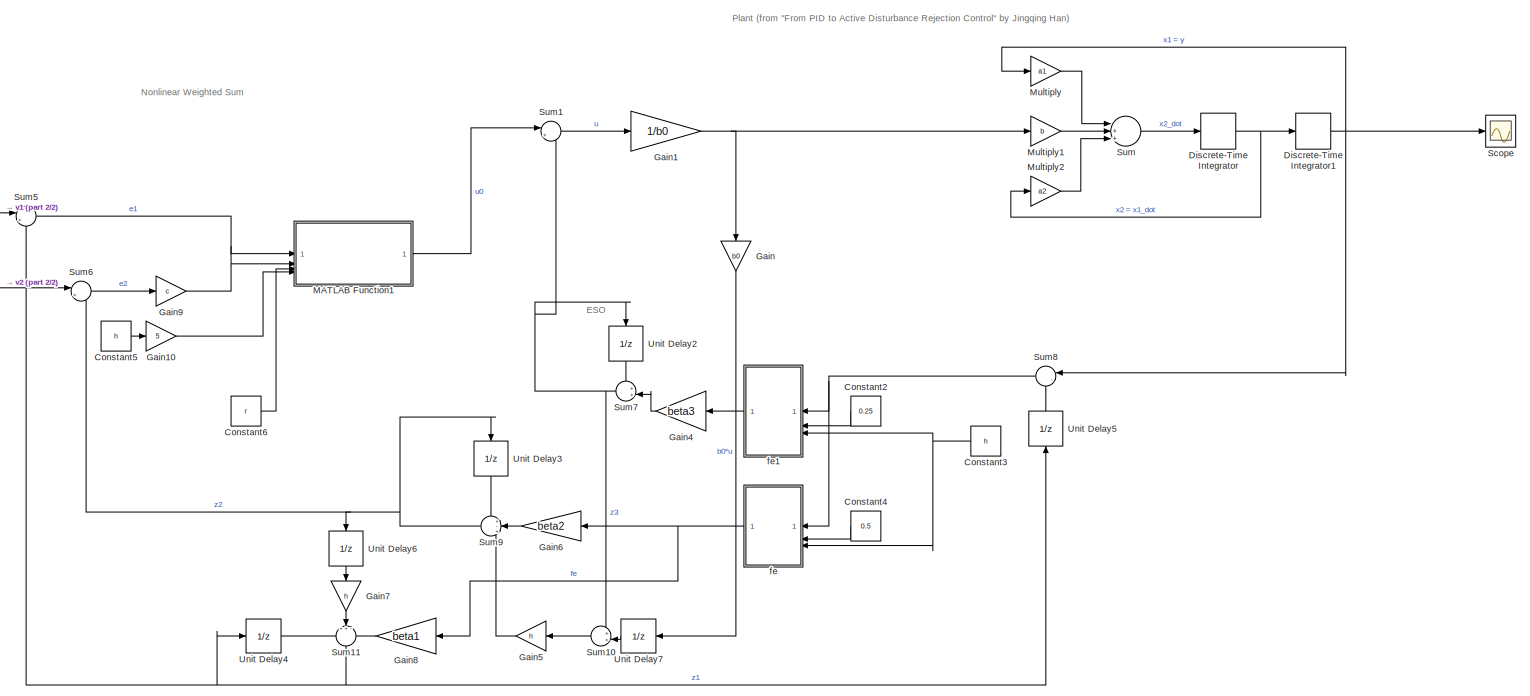
[diagram: root canvas - part 1/2, center side, full height]
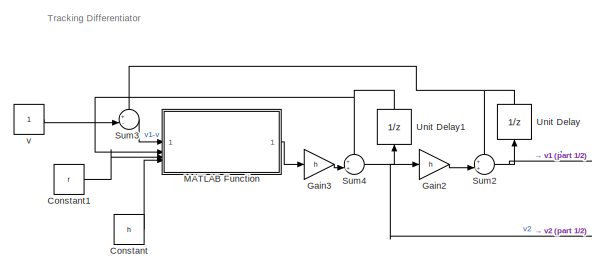
[diagram: root canvas - part 2/2, top left region]
MODEL slx_e5fe6f34e759
KIND model
CONFIG AbsTol = auto
CONFIG EnableMultiTasking = off
CONFIG FixedStep = h
CONFIG MaxStep = auto
CONFIG MinStep = auto
CONFIG RelTol = 1e-5
CONFIG SampleTimeConstraint = Unconstrained
CONFIG SolverName = FixedStepAuto
CONFIG StartTime = 0.0
CONFIG StopTime = 10.0
BLOCK [Constant] Constant
  Value = h
BLOCK [Constant] Constant1
  Value = r
BLOCK [Constant] Constant2
  NameLocation = top
  Value = 0.25
BLOCK [Constant] Constant3
  NameLocation = top
  Value = h
BLOCK [Constant] Constant4
  NameLocation = top
  Value = 0.5
BLOCK [Constant] Constant5
  Value = h
BLOCK [Constant] Constant6
  Value = r
BLOCK [DiscreteIntegrator] Discrete-Time Integrator
  ICPrevOutput = DiscIntNeverNeededParam
  ICPrevScaledInput = DiscIntNeverNeededParam
  InitialConditionSetting = Auto
  SampleTime = -1
BLOCK [DiscreteIntegrator] Discrete-Time Integrator1
  ICPrevOutput = DiscIntNeverNeededParam
  ICPrevScaledInput = DiscIntNeverNeededParam
  InitialConditionSetting = Auto
  SampleTime = -1
BLOCK [Gain] Gain
  Gain = b0
  NameLocation = left
BLOCK [Gain] Gain1
  Gain = 1/b0
BLOCK [Gain] Gain10
  Gain = 5
BLOCK [Gain] Gain2
  Gain = h
BLOCK [Gain] Gain3
  Gain = h
BLOCK [Gain] Gain4
  Gain = beta3
  NameLocation = top
BLOCK [Gain] Gain5
  Gain = h
  NameLocation = top
BLOCK [Gain] Gain6
  Gain = beta2
  NameLocation = top
BLOCK [Gain] Gain7
  Gain = h
  NameLocation = left
BLOCK [Gain] Gain8
  Gain = beta1
  NameLocation = top
BLOCK [Gain] Gain9
  Gain = c
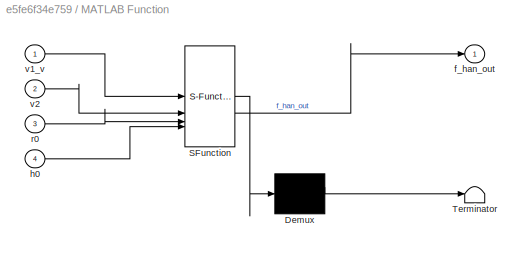
BLOCK [SubSystem] MATLAB Function
  ErrorFcn = Stateflow.Translate.translate
  PermitHierarchicalResolution = ExplicitOnly
  SFBlockType = MATLAB Function
  TreatAsAtomicUnit = on
BLOCK [Demux] MATLAB Function/ Demux 
  Outputs = 1
BLOCK [S-Function] MATLAB Function/ SFunction 
  EnableBusSupport = on
  FunctionName = sf_sfun
  PortCounts = [4 2]
  SFcnIsStateOwnerBlock = off
  SFunctionDeploymentMode = off
  Tag = Stateflow S-Function 2
BLOCK [Terminator] MATLAB Function/ Terminator 
BLOCK [Outport] MATLAB Function/f_han_out
BLOCK [Inport] MATLAB Function/h0
  Port = 4
BLOCK [Inport] MATLAB Function/r0
  Port = 3
BLOCK [Inport] MATLAB Function/v1_v
BLOCK [Inport] MATLAB Function/v2
  Port = 2
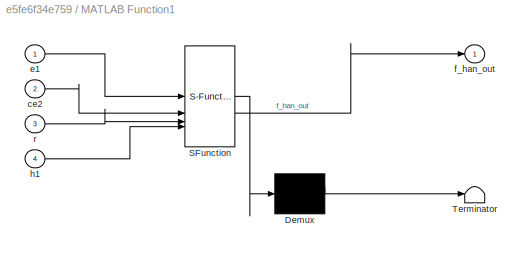
BLOCK [SubSystem] MATLAB Function1
  ErrorFcn = Stateflow.Translate.translate
  PermitHierarchicalResolution = ExplicitOnly
  SFBlockType = MATLAB Function
  TreatAsAtomicUnit = on
BLOCK [Demux] MATLAB Function1/ Demux 
  Outputs = 1
BLOCK [S-Function] MATLAB Function1/ SFunction 
  EnableBusSupport = on
  FunctionName = sf_sfun
  PortCounts = [4 2]
  SFcnIsStateOwnerBlock = off
  SFunctionDeploymentMode = off
  Tag = Stateflow S-Function 4
BLOCK [Terminator] MATLAB Function1/ Terminator 
BLOCK [Inport] MATLAB Function1/ce2
  Port = 2
BLOCK [Inport] MATLAB Function1/e1
BLOCK [Outport] MATLAB Function1/f_han_out
BLOCK [Inport] MATLAB Function1/h1
  Port = 4
BLOCK [Inport] MATLAB Function1/r
  Port = 3
BLOCK [Gain] Multiply
  Gain = a1
BLOCK [Gain] Multiply1
  Gain = b
BLOCK [Gain] Multiply2
  Gain = a2
BLOCK [Scope] Scope
  Floating = off
  NumInputPorts = 1
  ScopeSpecificationString = Simulink.scopes.TimeScopeBlockCfg('CurrentConfiguration', extmgr.ConfigurationSet(extmgr.Configuration('Core','General UI',true),extmgr.Configuration('Core','Source UI',true),extmgr.Configuration('Sources','WiredSimulink',true),extmgr.Configuration('Visuals','Time Domain',true,'SerializedDisplays',{struct('MinYLimReal','-1.00000','MaxYLimReal','1.00000','YLabelReal','','MinYLimMag','0.00000','MaxY...<+1415ch>
BLOCK [Sum] Sum
  Inputs = |+++|
BLOCK [Sum] Sum1
  Inputs = |+-
BLOCK [Sum] Sum10
  Inputs = ++|
  NameLocation = top
BLOCK [Sum] Sum11
  Inputs = ++-
  NameLocation = left
BLOCK [Sum] Sum2
  Inputs = ++|
BLOCK [Sum] Sum3
  Inputs = +-|
BLOCK [Sum] Sum4
  Inputs = ++|
BLOCK [Sum] Sum5
  Inputs = |+-
BLOCK [Sum] Sum6
  Inputs = |+-
BLOCK [Sum] Sum7
  Inputs = ++|
  NameLocation = top
BLOCK [Sum] Sum8
  Inputs = |-+
  NameLocation = top
BLOCK [Sum] Sum9
  Inputs = +-+
  NameLocation = top
BLOCK [UnitDelay] Unit Delay
  HasFrameUpgradeWarning = on
  NameLocation = right
  SampleTime = -1
BLOCK [UnitDelay] Unit Delay1
  HasFrameUpgradeWarning = on
  NameLocation = right
  SampleTime = -1
BLOCK [UnitDelay] Unit Delay2
  HasFrameUpgradeWarning = on
  NameLocation = left
  SampleTime = -1
BLOCK [UnitDelay] Unit Delay3
  HasFrameUpgradeWarning = on
  NameLocation = left
  SampleTime = -1
BLOCK [UnitDelay] Unit Delay4
  HasFrameUpgradeWarning = on
  SampleTime = -1
BLOCK [UnitDelay] Unit Delay5
  HasFrameUpgradeWarning = on
  NameLocation = right
  SampleTime = -1
BLOCK [UnitDelay] Unit Delay6
  HasFrameUpgradeWarning = on
  NameLocation = left
  SampleTime = -1
BLOCK [UnitDelay] Unit Delay7
  HasFrameUpgradeWarning = on
  NameLocation = top
  SampleTime = -1
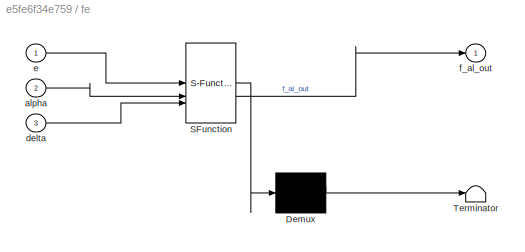
BLOCK [SubSystem] fe
  ErrorFcn = Stateflow.Translate.translate
  NameLocation = top
  PermitHierarchicalResolution = ExplicitOnly
  SFBlockType = MATLAB Function
  TreatAsAtomicUnit = on
BLOCK [Demux] fe/ Demux 
  Outputs = 1
BLOCK [S-Function] fe/ SFunction 
  EnableBusSupport = on
  FunctionName = sf_sfun
  PortCounts = [3 2]
  SFcnIsStateOwnerBlock = off
  SFunctionDeploymentMode = off
  Tag = Stateflow S-Function 3
BLOCK [Terminator] fe/ Terminator 
BLOCK [Inport] fe/alpha
  Port = 2
BLOCK [Inport] fe/delta
  Port = 3
BLOCK [Inport] fe/e
BLOCK [Outport] fe/f_al_out
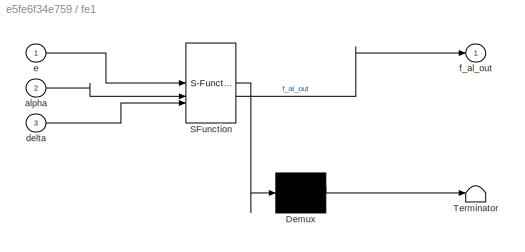
BLOCK [SubSystem] fe1
  ErrorFcn = Stateflow.Translate.translate
  NameLocation = top
  PermitHierarchicalResolution = ExplicitOnly
  SFBlockType = MATLAB Function
  TreatAsAtomicUnit = on
BLOCK [Demux] fe1/ Demux 
  Outputs = 1
BLOCK [S-Function] fe1/ SFunction 
  EnableBusSupport = on
  FunctionName = sf_sfun
  PortCounts = [3 2]
  SFcnIsStateOwnerBlock = off
  SFunctionDeploymentMode = off
  Tag = Stateflow S-Function 1
BLOCK [Terminator] fe1/ Terminator 
BLOCK [Inport] fe1/alpha
  Port = 2
BLOCK [Inport] fe1/delta
  Port = 3
BLOCK [Inport] fe1/e
BLOCK [Outport] fe1/f_al_out
BLOCK [Constant] v
ANNOTATION (root): ESO
ANNOTATION (root): Nonlinear Weighted Sum
ANNOTATION (root): Plant (from "From PID to Active Disturbance Rejection Control" by Jingqing Han)
ANNOTATION (root): Tracking Differentiator
LINE Constant1:1 -> MATLAB Function:3
LINE Constant2:1 -> fe1:2
NET Constant3:1 -> fe1:3, fe:3
LINE Constant4:1 -> fe:2
LINE Constant5:1 -> Gain10:1
LINE Constant6:1 -> MATLAB Function1:3
LINE Constant:1 -> MATLAB Function:4
NET Discrete-Time Integrator1:1 -> Multiply:1, Scope:1, Sum8:1
NET Discrete-Time Integrator:1 -> Discrete-Time Integrator1:1, Multiply2:1
LINE Gain10:1 -> MATLAB Function1:4
NET Gain1:1 -> Gain:1, Multiply1:1
LINE Gain2:1 -> Sum2:2
LINE Gain3:1 -> Sum4:2
LINE Gain4:1 -> Sum7:2
LINE Gain5:1 -> Sum9:3
LINE Gain6:1 -> Sum9:2
LINE Gain7:1 -> Sum11:2
LINE Gain8:1 -> Sum11:3
LINE Gain9:1 -> MATLAB Function1:2
LINE Gain:1 -> Unit Delay7:1
LINE MATLAB Function1:1 -> Sum1:1
LINE MATLAB Function:1 -> Gain3:1
LINE Multiply1:1 -> Sum:2
LINE Multiply2:1 -> Sum:3
LINE Multiply:1 -> Sum:1
LINE Sum10:1 -> Gain5:1
NET Sum11:1 -> Sum5:2, Unit Delay4:1, Unit Delay5:1
LINE Sum1:1 -> Gain1:1
NET Sum2:1 -> Sum5:1, Unit Delay:1
LINE Sum3:1 -> MATLAB Function:1
NET Sum4:1 -> Gain2:1, Sum6:1, Unit Delay1:1
LINE Sum5:1 -> MATLAB Function1:1
LINE Sum6:1 -> Gain9:1
NET Sum7:1 -> Sum10:1, Sum1:2, Unit Delay2:1
NET Sum8:1 -> fe1:1, fe:1
NET Sum9:1 -> Sum6:2, Unit Delay3:1, Unit Delay6:1
LINE Sum:1 -> Discrete-Time Integrator:1
NET Unit Delay1:1 -> MATLAB Function:2, Sum4:1
LINE Unit Delay2:1 -> Sum7:1
LINE Unit Delay3:1 -> Sum9:1
LINE Unit Delay4:1 -> Sum11:1
LINE Unit Delay5:1 -> Sum8:2
LINE Unit Delay6:1 -> Gain7:1
LINE Unit Delay7:1 -> Sum10:2
NET Unit Delay:1 -> Sum2:1, Sum3:1
LINE fe1:1 -> Gain4:1
NET fe:1 -> Gain6:1, Gain8:1
LINE v:1 -> Sum3:2
note: NET lines group one-source signal fan-out (src -> all destinations, sorted); 1:1 wires keep LINE
CHART fe1 states=1 transitions=1
  STATE_LABEL 'eML_blk_kernel()'
  STATE_LABEL 'SCRIPT:\nfunction f_al_out = f_al(e, alpha, delta)\n\nf_al_out = 0;\n\nif abs(e) <= delta\n\n    f_al_out = e / (delta^(1-alpha));\n\nend \n\nif abs(e) >= delta\n\n    f_al_out = abs(e)^alpha * sign(e);\n\nend\n\n'
CHART MATLAB Function states=1 transitions=1
  STATE_LABEL 'eML_blk_kernel()'
  STATE_LABEL 'SCRIPT:\nfunction f_han_out = f_v(v1_v, v2, r0, h0)\n\nd = h0*r0^2;\na0 = h0*v2;\ny = v1_v + a0;\n\na1 = sqrt(d*(d + 8 * abs(y)));\na2 = a0 + sign(y)*(a1-d)/2;\n\ns_y = (sign(y+d) - sign(y-d)) / 2;\n\na = (a0 + y - a2)*s_y + a2;\ns_a = (sign(a+d) - sign(a*d)) / 2;\n\nf_han_out = -r0 * (a/d * sign(a)) * s_a * r0 * sign(a);\n'
CHART fe states=1 transitions=1
  STATE_LABEL 'eML_blk_kernel()'
  STATE_LABEL 'SCRIPT:\nfunction f_al_out = f_al(e, alpha, delta)\n\nf_al_out = 0;\n\nif abs(e) <= delta\n\n    f_al_out = e / (delta^(1-alpha));\n\nend \n\nif abs(e) >= delta\n\n    f_al_out = abs(e)^alpha * sign(e);\n\nend\n\n'
CHART MATLAB Function1 states=1 transitions=1
  STATE_LABEL 'eML_blk_kernel()'
  STATE_LABEL 'SCRIPT:\nfunction f_han_out = f_han(e1, ce2, r, h1)\n\nd = h1*r^2;\na0 = h1*ce2;\ny = e1 + a0;\n\na1 = sqrt(d*(d + 8 * abs(y)));\na2 = a0 + sign(y)*(a1-d)/2;\n\ns_y = (sign(y+d) - sign(y-d)) / 2;\n\na = (a0 + y - a2)*s_y + a2;\ns_a = (sign(a+d) - sign(a*d)) / 2;\n\nf_han_out = -r * (a/d * sign(a)) * s_a * r * sign(a);\n'
CHART  states=0 transitions=0
CHART  states=0 transitions=0
CHART  states=0 transitions=0
CHART  states=0 transitions=0
